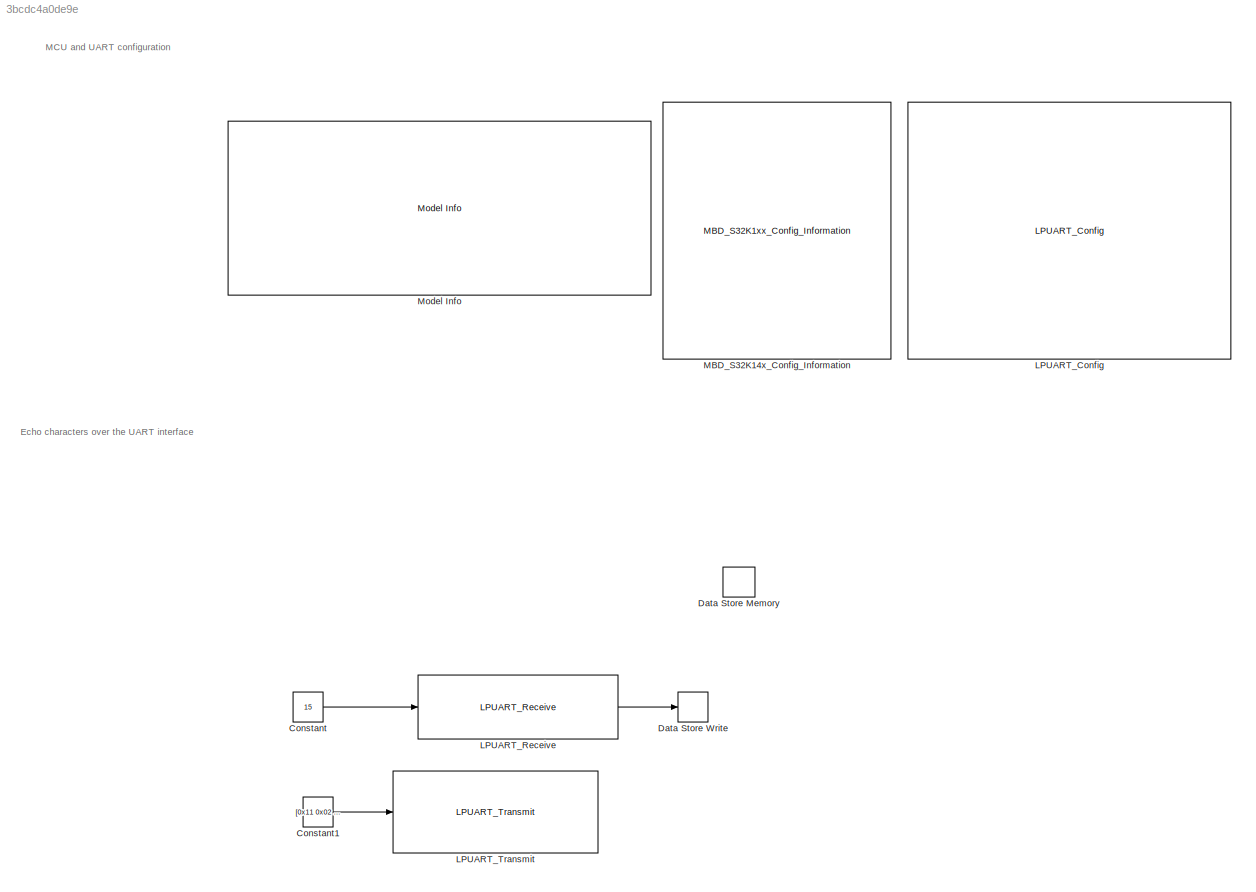
MODEL slx_3bcdc4a0de9e
KIND model
CONFIG AbsTol = auto
CONFIG EnableMultiTasking = on
CONFIG FixedStep = 0.1
CONFIG InitFcn = mbd_s32k_consistency_checks(bdroot(gcs));
CONFIG MaxStep = auto
CONFIG MinStep = auto
CONFIG RelTol = 1e-3
CONFIG SampleTimeConstraint = Unconstrained
CONFIG SolverName = FixedStepDiscrete
CONFIG StartTime = 0.0
CONFIG StopTime = 10.0
BLOCK [Constant] Constant
  OutDataTypeStr = Inherit: Inherit via back propagation
  Value = 15
BLOCK [Constant] Constant1
  Commented = on
  Value = [0x11 0x02 0x02 0x00 0xEB]
BLOCK [DataStoreMemory] Data Store Memory
  InitialValue = zeros(1,15)
  ShowAdditionalParam = off
  StateMustResolveToSignalObject = on
  WriteAfterWriteMsg = warning
BLOCK [DataStoreWrite] Data Store Write
  IndexOptions = Index vector (dialog)
  Indices = 1
  OutputSizes = 1
BLOCK [Reference] LPUART_Config  REF=mbd_s32k1xx_ec_toolbox/Communication Blocks/UART Blocks/LPUART_Config
  Priority = 1
  SourceBlock = mbd_s32k1xx_ec_toolbox/Communication Blocks/UART Blocks/LPUART_Config
  SourceType = lpuart_s32k_config
BLOCK [Reference] LPUART_Receive  REF=mbd_s32k1xx_ec_toolbox/Communication Blocks/UART Blocks/LPUART_Receive
  Priority = 2
  SourceBlock = mbd_s32k1xx_ec_toolbox/Communication Blocks/UART Blocks/LPUART_Receive
  SourceType = lpuart_s32k_receive
BLOCK [Reference] LPUART_Transmit  REF=mbd_s32k1xx_ec_toolbox/Communication Blocks/UART Blocks/LPUART_Transmit
  Commented = on
  Priority = 1
  SourceBlock = mbd_s32k1xx_ec_toolbox/Communication Blocks/UART Blocks/LPUART_Transmit
  SourceType = lpuart_s32k_transmit
BLOCK [Reference] MBD_S32K14x_Config_Information  REF=mbd_s32k1xx_ec_toolbox/MBD_S32K1xx_Config_Information
  Priority = 0
  SourceBlock = mbd_s32k1xx_ec_toolbox/MBD_S32K1xx_Config_Information
  SourceType = MBDTBX_EC_S32K
BLOCK [Reference] Model Info  REF=simulink/Model-Wide
Utilities/Model Info
  SourceBlock = simulink/Model-Wide\nUtilities/Model Info
  SourceType = CMBlock
ANNOTATION (root): Echo characters over the UART interface
ANNOTATION (root): MCU and UART configuration
LINE Constant1:1 -> LPUART_Transmit:1
LINE Constant:1 -> LPUART_Receive:1
LINE LPUART_Receive:1 -> Data Store Write:1
